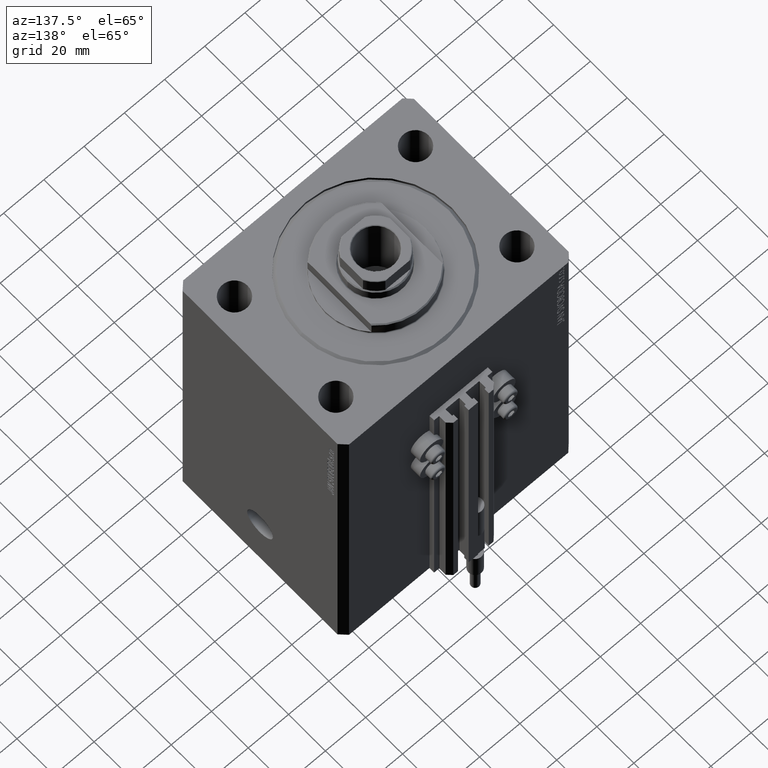
[diagram: clean part render]
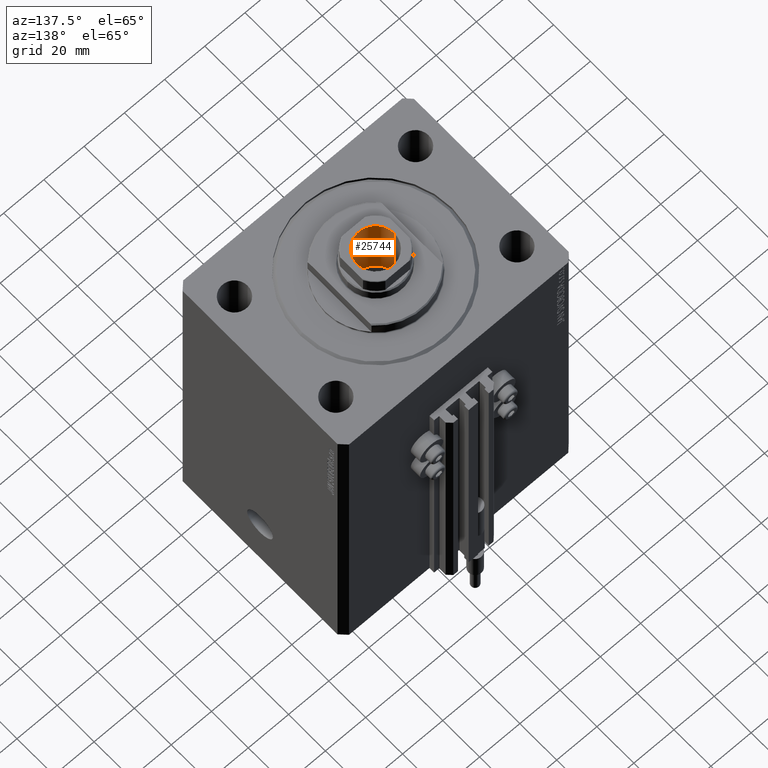
[diagram: same view with one face highlighted and labeled with its STEP entity id]
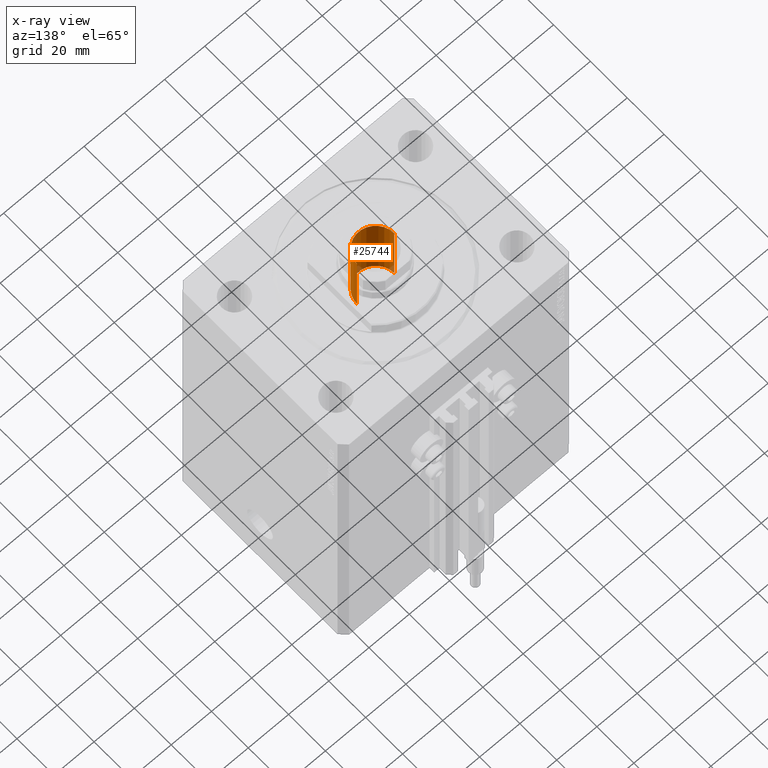
[diagram: x-ray of the same camera — body ghosted, the highlighted face saturated]
A machine part, auxiliary view. The second image highlights one B-rep face of the part: STEP entity #25744.
The next image is the same camera in x-ray: the body ghosted, the highlighted face saturated — about 3% of this face is hidden behind the body in this view.
In plain terms, the highlighted cylindrical surface (edge-blend (fillet) strip) has radius 9.25 mm, axis along (0, 0, 1).
Its self-contained STEP definition (entity closure, byte-faithful):
#261 = CIRCLE ( 'NONE', #38340, 9.249999999999994671 ) ;
#1475 = DIRECTION ( 'NONE',  ( 1.000000000000000000, 0.000000000000000000, 0.000000000000000000 ) ) ;
#4659 = FACE_OUTER_BOUND ( 'NONE', #24729, .T. ) ;
#7413 = ORIENTED_EDGE ( 'NONE', *, *, #44059, .F. ) ;
#8375 = CARTESIAN_POINT ( 'NONE',  ( -9.249999999999996447, 1.132798289211301304E-15, 166.8000000000000682 ) ) ;
#10293 = AXIS2_PLACEMENT_3D ( 'NONE', #26556, #38469, #19493 ) ;
#12016 = VERTEX_POINT ( 'NONE', #25202 ) ;
#12677 = VERTEX_POINT ( 'NONE', #16945 ) ;
#12770 = ORIENTED_EDGE ( 'NONE', *, *, #20897, .T. ) ;
#13707 = LINE ( 'NONE', #47546, #17896 ) ;
#16945 = CARTESIAN_POINT ( 'NONE',  ( 9.249999999999994671, 0.000000000000000000, 132.1000000000000227 ) ) ;
#17896 = VECTOR ( 'NONE', #32468, 1000.000000000000000 ) ;
#18990 = CARTESIAN_POINT ( 'NONE',  ( 0.000000000000000000, 0.000000000000000000, 166.8000000000000682 ) ) ;
#19403 = EDGE_CURVE ( 'NONE', #40375, #12677, #261, .T. ) ;
#19477 = ORIENTED_EDGE ( 'NONE', *, *, #47039, .T. ) ;
#19493 = DIRECTION ( 'NONE',  ( 1.000000000000000000, 0.000000000000000000, 0.000000000000000000 ) ) ;
#20897 = EDGE_CURVE ( 'NONE', #40375, #32477, #30171, .T. ) ;
#20912 = CARTESIAN_POINT ( 'NONE',  ( 0.000000000000000000, 0.000000000000000000, 132.1000000000000227 ) ) ;
#24335 = DIRECTION ( 'NONE',  ( -0.000000000000000000, -0.000000000000000000, 1.000000000000000000 ) ) ;
#24729 = EDGE_LOOP ( 'NONE', ( #37840, #12770, #19477, #7413 ) ) ;
#25202 = CARTESIAN_POINT ( 'NONE',  ( 9.249999999999996447, 0.000000000000000000, 166.8000000000000682 ) ) ;
#25744 = ADVANCED_FACE ( 'NONE', ( #4659 ), #34588, .F. ) ;
#26556 = CARTESIAN_POINT ( 'NONE',  ( 0.000000000000000000, 0.000000000000000000, 167.1000000000000227 ) ) ;
#30171 = LINE ( 'NONE', #38421, #33853 ) ;
#32468 = DIRECTION ( 'NONE',  ( -0.000000000000000000, -0.000000000000000000, 1.000000000000000000 ) ) ;
#32477 = VERTEX_POINT ( 'NONE', #8375 ) ;
#33847 = DIRECTION ( 'NONE',  ( 1.000000000000000000, 0.000000000000000000, 0.000000000000000000 ) ) ;
#33853 = VECTOR ( 'NONE', #41585, 1000.000000000000000 ) ;
#34588 = CYLINDRICAL_SURFACE ( 'NONE', #10293, 9.249999999999996447 ) ;
#35869 = AXIS2_PLACEMENT_3D ( 'NONE', #18990, #40679, #33847 ) ;
#36671 = CIRCLE ( 'NONE', #35869, 9.249999999999996447 ) ;
#37840 = ORIENTED_EDGE ( 'NONE', *, *, #19403, .F. ) ;
#38340 = AXIS2_PLACEMENT_3D ( 'NONE', #20912, #24335, #1475 ) ;
#38421 = CARTESIAN_POINT ( 'NONE',  ( -9.249999999999996447, 1.132798289211301304E-15, 167.1000000000000227 ) ) ;
#38469 = DIRECTION ( 'NONE',  ( -0.000000000000000000, -0.000000000000000000, 1.000000000000000000 ) ) ;
#40375 = VERTEX_POINT ( 'NONE', #41374 ) ;
#40679 = DIRECTION ( 'NONE',  ( 0.000000000000000000, 0.000000000000000000, 1.000000000000000000 ) ) ;
#41374 = CARTESIAN_POINT ( 'NONE',  ( -9.249999999999994671, 1.132798289211300909E-15, 132.1000000000000227 ) ) ;
#41585 = DIRECTION ( 'NONE',  ( -0.000000000000000000, -0.000000000000000000, 1.000000000000000000 ) ) ;
#44059 = EDGE_CURVE ( 'NONE', #12677, #12016, #13707, .T. ) ;
#47039 = EDGE_CURVE ( 'NONE', #32477, #12016, #36671, .T. ) ;
#47546 = CARTESIAN_POINT ( 'NONE',  ( 9.249999999999996447, 0.000000000000000000, 167.1000000000000227 ) ) ;